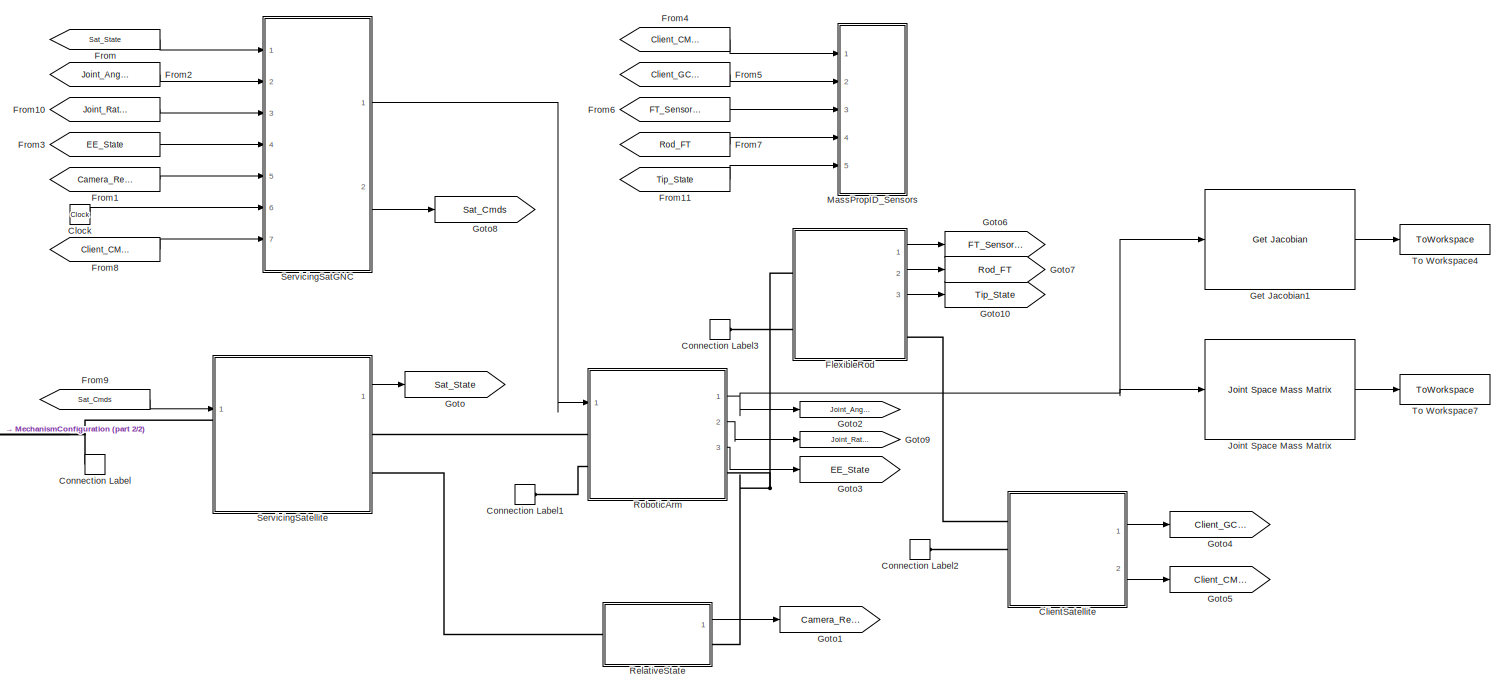
[diagram: root canvas - part 1/2, most of the canvas]
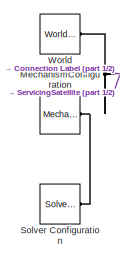
[diagram: root canvas - part 2/2, bottom left region]
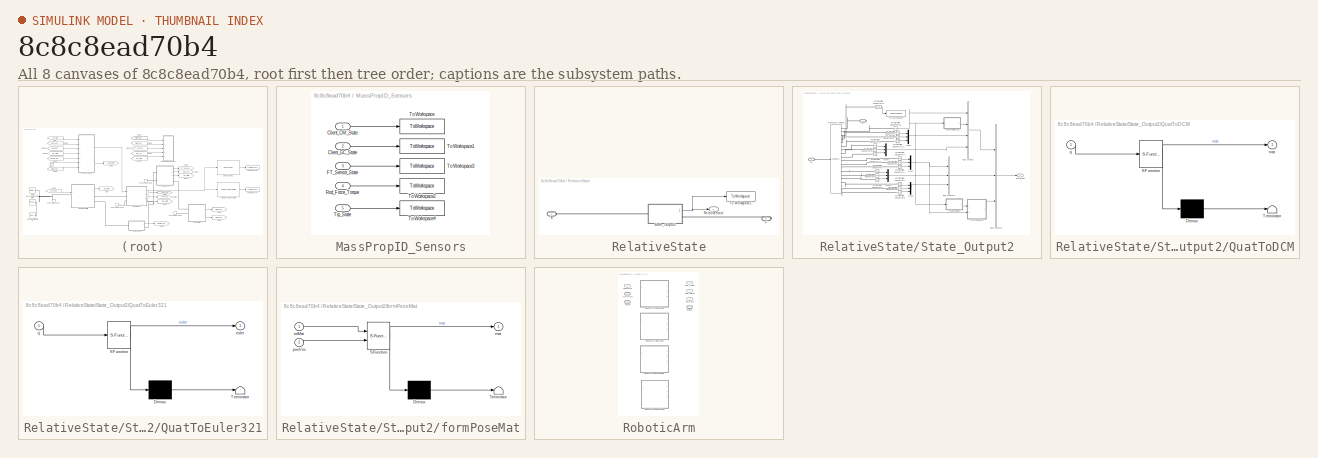
[diagram: thumbnail index - all 8 canvases of the model, root first then tree order]
MODEL slx_8c8c8ead70b4
KIND model
CONFIG AbsTol = auto
CONFIG EnableMultiTasking = off
CONFIG FixedStep = auto
CONFIG MaxStep = auto
CONFIG MinStep = auto
CONFIG RelTol = 1e-3
CONFIG SampleTimeConstraint = Unconstrained
CONFIG SolverName = ode15s
CONFIG StartTime = 0.0
CONFIG StopTime = endTime
BLOCK [SubSystem] ClientSatellite
  Commented = on
  Ports = [0, 2, 0, 0, 0, 3]
  ReferencedSubsystem = ClientSatellite
  RequestExecContextInheritance = off
BLOCK [Clock] Clock
BLOCK [ConnectionLabel] Connection Label
  Label = World
  Ports = [0, 0, 0, 0, 0, 1]
BLOCK [ConnectionLabel] Connection Label1
  Label = World
  Ports = [0, 0, 0, 0, 0, 1]
BLOCK [ConnectionLabel] Connection Label2
  Label = World
  Ports = [0, 0, 0, 0, 0, 1]
BLOCK [ConnectionLabel] Connection Label3
  Label = World
  Ports = [0, 0, 0, 0, 0, 1]
BLOCK [SubSystem] FlexibleRod
  Commented = on
  Ports = [0, 3, 0, 0, 0, 2, 2]
  ReferencedSubsystem = FlexibleRodModel
  RequestExecContextInheritance = off
BLOCK [From] From
  GotoTag = Sat_State
BLOCK [From] From1
  GotoTag = Camera_Rel_State
BLOCK [From] From10
  GotoTag = Joint_Rates
BLOCK [From] From11
  GotoTag = Tip_State
BLOCK [From] From2
  GotoTag = Joint_Angles
BLOCK [From] From3
  GotoTag = EE_State
BLOCK [From] From4
  GotoTag = Client_CM_State
BLOCK [From] From5
  GotoTag = Client_GC_State
BLOCK [From] From6
  GotoTag = FT_Sensor_State
BLOCK [From] From7
  GotoTag = Rod_FT
BLOCK [From] From8
  GotoTag = Client_CM_State
BLOCK [From] From9
  GotoTag = Sat_Cmds
BLOCK [Reference] Get Jacobian1  REF=robotmaniplib/Get Jacobian
  Ports = [1, 1]
  SourceBlock = robotmaniplib/Get Jacobian
  SourceProductBaseCode = RO
  SourceType = Get Jacobian
BLOCK [Goto] Goto
  GotoTag = Sat_State
BLOCK [Goto] Goto1
  GotoTag = Camera_Rel_State
BLOCK [Goto] Goto10
  GotoTag = Tip_State
BLOCK [Goto] Goto2
  GotoTag = Joint_Angles
BLOCK [Goto] Goto3
  GotoTag = EE_State
BLOCK [Goto] Goto4
  Commented = on
  GotoTag = Client_GC_State
BLOCK [Goto] Goto5
  Commented = on
  GotoTag = Client_CM_State
BLOCK [Goto] Goto6
  GotoTag = FT_Sensor_State
BLOCK [Goto] Goto7
  GotoTag = Rod_FT
BLOCK [Goto] Goto8
  GotoTag = Sat_Cmds
BLOCK [Goto] Goto9
  GotoTag = Joint_Rates
BLOCK [Reference] Joint Space Mass Matrix  REF=robotmaniplib/Joint Space Mass Matrix
  Ports = [1, 1]
  SourceBlock = robotmaniplib/Joint Space Mass Matrix
  SourceProductBaseCode = RO
  SourceType = Joint Space Mass Matrix
BLOCK [SubSystem] MassPropID_Sensors
  Ports = [5]
  RequestExecContextInheritance = off
BLOCK [Inport] MassPropID_Sensors/Client_CM_State
BLOCK [Inport] MassPropID_Sensors/Client_GC_State
  Port = 2
BLOCK [Inport] MassPropID_Sensors/FT_Sensor_State
  Port = 3
BLOCK [Inport] MassPropID_Sensors/Rod_Force_Torque
  Port = 4
BLOCK [Inport] MassPropID_Sensors/Tip_State
  Port = 5
BLOCK [ToWorkspace] MassPropID_Sensors/To Workspace
  FixptAsFi = on
  MaxDataPoints = inf
  Ports = [1]
  SampleTime = -1
  SaveFormat = Timeseries
  VariableName = client_cm_state
BLOCK [ToWorkspace] MassPropID_Sensors/To Workspace1
  FixptAsFi = on
  MaxDataPoints = inf
  Ports = [1]
  SampleTime = -1
  SaveFormat = Timeseries
  VariableName = client_gc_state
BLOCK [ToWorkspace] MassPropID_Sensors/To Workspace2
  FixptAsFi = on
  MaxDataPoints = inf
  Ports = [1]
  SampleTime = -1
  SaveFormat = Timeseries
  VariableName = rod_force_torque
BLOCK [ToWorkspace] MassPropID_Sensors/To Workspace3
  FixptAsFi = on
  MaxDataPoints = inf
  Ports = [1]
  SampleTime = -1
  SaveFormat = Timeseries
  VariableName = ft_sensor_state
BLOCK [ToWorkspace] MassPropID_Sensors/To Workspace4
  FixptAsFi = on
  MaxDataPoints = inf
  Ports = [1]
  SampleTime = -1
  SaveFormat = Timeseries
  VariableName = tip_states
BLOCK [Reference] MechanismConfiguration  REF=sm_lib/Utilities/Mechanism
Configuration
  Ports = [0, 0, 0, 0, 0, 0, 1]
  SourceBlock = sm_lib/Utilities/Mechanism\nConfiguration
  SourceProductBaseCode = MS
  SourceType = Mechanism\nConfiguration
BLOCK [SubSystem] RelativeState
  Ports = [0, 1, 0, 0, 0, 1, 1]
  RequestExecContextInheritance = off
BLOCK [PMIOPort] RelativeState/B
  Side = Left
BLOCK [PMIOPort] RelativeState/F
  Port = 2
  Side = Right
BLOCK [Outport] RelativeState/RelativeState
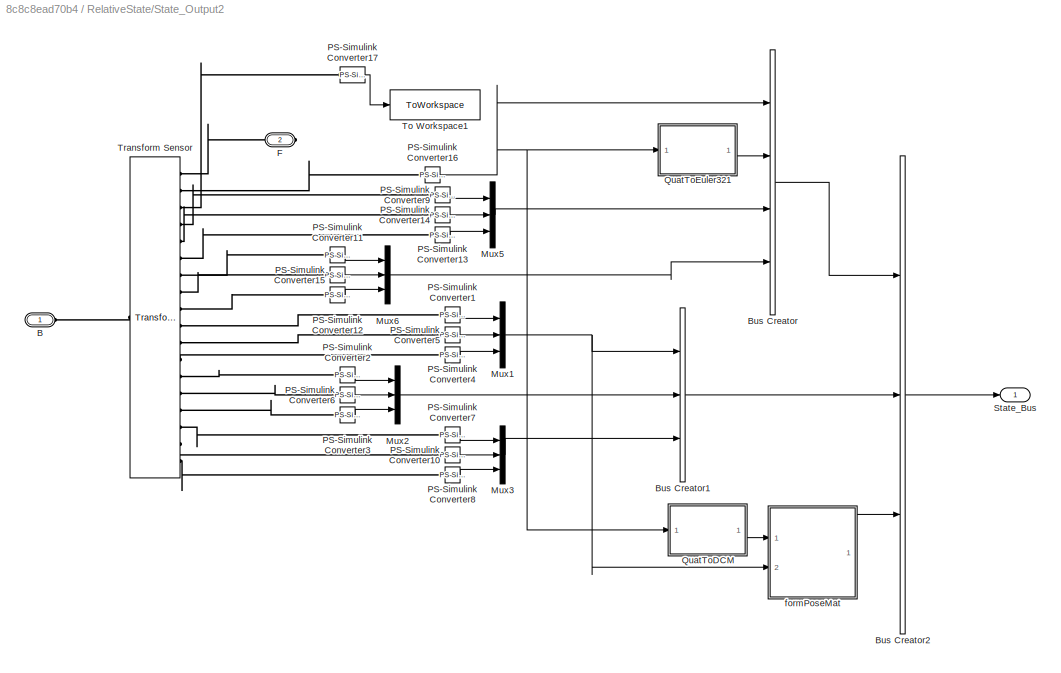
BLOCK [SubSystem] RelativeState/State_Output2
  Ports = [0, 1, 0, 0, 0, 1, 1]
  RequestExecContextInheritance = off
BLOCK [PMIOPort] RelativeState/State_Output2/B
  Side = Left
BLOCK [BusCreator] RelativeState/State_Output2/Bus Creator
  DisplayOption = bar
  InheritFromInputs = off
  Inputs = 4
  OutDataTypeStr = Bus: RotStateBus
  Ports = [4, 1]
BLOCK [BusCreator] RelativeState/State_Output2/Bus Creator1
  DisplayOption = bar
  InheritFromInputs = off
  Inputs = 3
  OutDataTypeStr = Bus: TransStateBus
  Ports = [3, 1]
BLOCK [BusCreator] RelativeState/State_Output2/Bus Creator2
  DisplayOption = bar
  InheritFromInputs = off
  Inputs = 3
  OutDataTypeStr = Bus: StateBus
  Ports = [3, 1]
BLOCK [PMIOPort] RelativeState/State_Output2/F
  Port = 2
  Side = Right
BLOCK [Mux] RelativeState/State_Output2/Mux1
  DisplayOption = bar
  Inputs = 3
  Ports = [3, 1]
BLOCK [Mux] RelativeState/State_Output2/Mux2
  DisplayOption = bar
  Inputs = 3
  Ports = [3, 1]
BLOCK [Mux] RelativeState/State_Output2/Mux3
  DisplayOption = bar
  Inputs = 3
  Ports = [3, 1]
BLOCK [Mux] RelativeState/State_Output2/Mux5
  DisplayOption = bar
  Inputs = 3
  Ports = [3, 1]
BLOCK [Mux] RelativeState/State_Output2/Mux6
  DisplayOption = bar
  Inputs = 3
  Ports = [3, 1]
BLOCK [Reference] RelativeState/State_Output2/PS-Simulink Converter1  REF=nesl_utility/PS-Simulink
Converter
  Ports = [0, 1, 0, 0, 0, 1]
  SourceBlock = nesl_utility/PS-Simulink\nConverter
  SourceProductBaseCode = SS,PW,VE
  SourceType = PS-Simulink\nConverter
BLOCK [Reference] RelativeState/State_Output2/PS-Simulink Converter10  REF=nesl_utility/PS-Simulink
Converter
  Ports = [0, 1, 0, 0, 0, 1]
  SourceBlock = nesl_utility/PS-Simulink\nConverter
  SourceProductBaseCode = SS,PW,VE
  SourceType = PS-Simulink\nConverter
BLOCK [Reference] RelativeState/State_Output2/PS-Simulink Converter11  REF=nesl_utility/PS-Simulink
Converter
  Ports = [0, 1, 0, 0, 0, 1]
  SourceBlock = nesl_utility/PS-Simulink\nConverter
  SourceProductBaseCode = SS,PW,VE
  SourceType = PS-Simulink\nConverter
BLOCK [Reference] RelativeState/State_Output2/PS-Simulink Converter12  REF=nesl_utility/PS-Simulink
Converter
  Ports = [0, 1, 0, 0, 0, 1]
  SourceBlock = nesl_utility/PS-Simulink\nConverter
  SourceProductBaseCode = SS,PW,VE
  SourceType = PS-Simulink\nConverter
BLOCK [Reference] RelativeState/State_Output2/PS-Simulink Converter13  REF=nesl_utility/PS-Simulink
Converter
  Ports = [0, 1, 0, 0, 0, 1]
  SourceBlock = nesl_utility/PS-Simulink\nConverter
  SourceProductBaseCode = SS,PW,VE
  SourceType = PS-Simulink\nConverter
BLOCK [Reference] RelativeState/State_Output2/PS-Simulink Converter14  REF=nesl_utility/PS-Simulink
Converter
  Ports = [0, 1, 0, 0, 0, 1]
  SourceBlock = nesl_utility/PS-Simulink\nConverter
  SourceProductBaseCode = SS,PW,VE
  SourceType = PS-Simulink\nConverter
BLOCK [Reference] RelativeState/State_Output2/PS-Simulink Converter15  REF=nesl_utility/PS-Simulink
Converter
  Ports = [0, 1, 0, 0, 0, 1]
  SourceBlock = nesl_utility/PS-Simulink\nConverter
  SourceProductBaseCode = SS,PW,VE
  SourceType = PS-Simulink\nConverter
BLOCK [Reference] RelativeState/State_Output2/PS-Simulink Converter16  REF=nesl_utility/PS-Simulink
Converter
  Ports = [0, 1, 0, 0, 0, 1]
  SourceBlock = nesl_utility/PS-Simulink\nConverter
  SourceProductBaseCode = SS,PW,VE
  SourceType = PS-Simulink\nConverter
BLOCK [Reference] RelativeState/State_Output2/PS-Simulink Converter17  REF=nesl_utility/PS-Simulink
Converter
  Ports = [0, 1, 0, 0, 0, 1]
  SourceBlock = nesl_utility/PS-Simulink\nConverter
  SourceProductBaseCode = SS,PW,VE
  SourceType = PS-Simulink\nConverter
BLOCK [Reference] RelativeState/State_Output2/PS-Simulink Converter2  REF=nesl_utility/PS-Simulink
Converter
  Ports = [0, 1, 0, 0, 0, 1]
  SourceBlock = nesl_utility/PS-Simulink\nConverter
  SourceProductBaseCode = SS,PW,VE
  SourceType = PS-Simulink\nConverter
BLOCK [Reference] RelativeState/State_Output2/PS-Simulink Converter3  REF=nesl_utility/PS-Simulink
Converter
  Ports = [0, 1, 0, 0, 0, 1]
  SourceBlock = nesl_utility/PS-Simulink\nConverter
  SourceProductBaseCode = SS,PW,VE
  SourceType = PS-Simulink\nConverter
BLOCK [Reference] RelativeState/State_Output2/PS-Simulink Converter4  REF=nesl_utility/PS-Simulink
Converter
  Ports = [0, 1, 0, 0, 0, 1]
  SourceBlock = nesl_utility/PS-Simulink\nConverter
  SourceProductBaseCode = SS,PW,VE
  SourceType = PS-Simulink\nConverter
BLOCK [Reference] RelativeState/State_Output2/PS-Simulink Converter5  REF=nesl_utility/PS-Simulink
Converter
  Ports = [0, 1, 0, 0, 0, 1]
  SourceBlock = nesl_utility/PS-Simulink\nConverter
  SourceProductBaseCode = SS,PW,VE
  SourceType = PS-Simulink\nConverter
BLOCK [Reference] RelativeState/State_Output2/PS-Simulink Converter6  REF=nesl_utility/PS-Simulink
Converter
  Ports = [0, 1, 0, 0, 0, 1]
  SourceBlock = nesl_utility/PS-Simulink\nConverter
  SourceProductBaseCode = SS,PW,VE
  SourceType = PS-Simulink\nConverter
BLOCK [Reference] RelativeState/State_Output2/PS-Simulink Converter7  REF=nesl_utility/PS-Simulink
Converter
  Ports = [0, 1, 0, 0, 0, 1]
  SourceBlock = nesl_utility/PS-Simulink\nConverter
  SourceProductBaseCode = SS,PW,VE
  SourceType = PS-Simulink\nConverter
BLOCK [Reference] RelativeState/State_Output2/PS-Simulink Converter8  REF=nesl_utility/PS-Simulink
Converter
  Ports = [0, 1, 0, 0, 0, 1]
  SourceBlock = nesl_utility/PS-Simulink\nConverter
  SourceProductBaseCode = SS,PW,VE
  SourceType = PS-Simulink\nConverter
BLOCK [Reference] RelativeState/State_Output2/PS-Simulink Converter9  REF=nesl_utility/PS-Simulink
Converter
  Ports = [0, 1, 0, 0, 0, 1]
  SourceBlock = nesl_utility/PS-Simulink\nConverter
  SourceProductBaseCode = SS,PW,VE
  SourceType = PS-Simulink\nConverter
BLOCK [SubSystem] RelativeState/State_Output2/QuatToDCM
  ErrorFcn = Stateflow.Translate.translate
  PermitHierarchicalResolution = ExplicitOnly
  Ports = [1, 1]
  RequestExecContextInheritance = off
  SFBlockType = MATLAB Function
  TreatAsAtomicUnit = on
BLOCK [Demux] RelativeState/State_Output2/QuatToDCM/ Demux 
  Outputs = 1
  Ports = [1, 1]
BLOCK [S-Function] RelativeState/State_Output2/QuatToDCM/ SFunction 
  EnableBusSupport = on
  FunctionName = sf_sfun
  PortCounts = [1 2]
  Ports = [1, 2]
  SFcnIsStateOwnerBlock = off
  SFunctionDeploymentMode = off
  Tag = Stateflow S-Function 24
BLOCK [Terminator] RelativeState/State_Output2/QuatToDCM/ Terminator 
BLOCK [Outport] RelativeState/State_Output2/QuatToDCM/mat
BLOCK [Inport] RelativeState/State_Output2/QuatToDCM/q
BLOCK [SubSystem] RelativeState/State_Output2/QuatToEuler321
  ErrorFcn = Stateflow.Translate.translate
  PermitHierarchicalResolution = ExplicitOnly
  Ports = [1, 1]
  RequestExecContextInheritance = off
  SFBlockType = MATLAB Function
  TreatAsAtomicUnit = on
BLOCK [Demux] RelativeState/State_Output2/QuatToEuler321/ Demux 
  Outputs = 1
  Ports = [1, 1]
BLOCK [S-Function] RelativeState/State_Output2/QuatToEuler321/ SFunction 
  EnableBusSupport = on
  FunctionName = sf_sfun
  PortCounts = [1 2]
  Ports = [1, 2]
  SFcnIsStateOwnerBlock = off
  SFunctionDeploymentMode = off
  Tag = Stateflow S-Function 25
BLOCK [Terminator] RelativeState/State_Output2/QuatToEuler321/ Terminator 
BLOCK [Outport] RelativeState/State_Output2/QuatToEuler321/euler
BLOCK [Inport] RelativeState/State_Output2/QuatToEuler321/q
BLOCK [Outport] RelativeState/State_Output2/State_Bus
BLOCK [ToWorkspace] RelativeState/State_Output2/To Workspace1
  FixptAsFi = on
  MaxDataPoints = inf
  Ports = [1]
  SampleTime = -1
  SaveFormat = Timeseries
  VariableName = rel_rot
BLOCK [Reference] RelativeState/State_Output2/Transform Sensor  REF=sm_lib/Frames and
Transforms/Transform
Sensor
  Ports = [0, 0, 0, 0, 0, 1, 18]
  SourceBlock = sm_lib/Frames and\nTransforms/Transform\nSensor
  SourceProductBaseCode = MS
  SourceType = Transform\nSensor
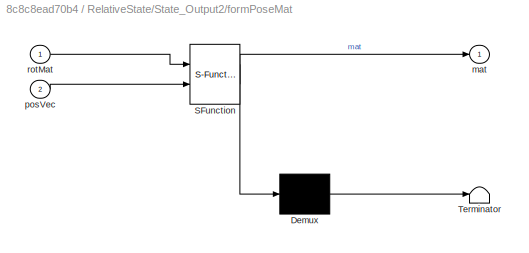
BLOCK [SubSystem] RelativeState/State_Output2/formPoseMat
  ErrorFcn = Stateflow.Translate.translate
  PermitHierarchicalResolution = ExplicitOnly
  Ports = [2, 1]
  RequestExecContextInheritance = off
  SFBlockType = MATLAB Function
  TreatAsAtomicUnit = on
BLOCK [Demux] RelativeState/State_Output2/formPoseMat/ Demux 
  Outputs = 1
  Ports = [1, 1]
BLOCK [S-Function] RelativeState/State_Output2/formPoseMat/ SFunction 
  EnableBusSupport = on
  FunctionName = sf_sfun
  PortCounts = [2 2]
  Ports = [2, 2]
  SFcnIsStateOwnerBlock = off
  SFunctionDeploymentMode = off
  Tag = Stateflow S-Function 26
BLOCK [Terminator] RelativeState/State_Output2/formPoseMat/ Terminator 
BLOCK [Outport] RelativeState/State_Output2/formPoseMat/mat
BLOCK [Inport] RelativeState/State_Output2/formPoseMat/posVec
  Port = 2
BLOCK [Inport] RelativeState/State_Output2/formPoseMat/rotMat
BLOCK [ToWorkspace] RelativeState/To Workspace1
  FixptAsFi = on
  MaxDataPoints = inf
  Ports = [1]
  SampleTime = -1
  SaveFormat = Timeseries
  VariableName = rel_state
BLOCK [SubSystem] RoboticArm
  Ports = [1, 3, 0, 0, 0, 2, 1]
  RequestExecContextInheritance = off
  Variant = on
  VariantControl = Choice
BLOCK [PMIOPort] RoboticArm/ArmAttach
  Port = 2
  Side = Left
BLOCK [PMIOPort] RoboticArm/Gripper
  Side = Right
BLOCK [Inport] RoboticArm/JointCmds
BLOCK [Outport] RoboticArm/Joint_Angles
BLOCK [Outport] RoboticArm/Joint_Rates
  Port = 2
BLOCK [SubSystem] RoboticArm/RoboticArmGeneral6DOF
  Ports = [1, 3, 0, 0, 0, 2, 1]
  ReferencedSubsystem = RoboticArmGeneral6DOF
  RequestExecContextInheritance = off
  VariantControl = VSS_RoboticArmGeneral6DOF
BLOCK [SubSystem] RoboticArm/RoboticArmGeneral7DOF
  Ports = [1, 3, 0, 0, 0, 2, 1]
  ReferencedSubsystem = RoboticArmGeneral7DOF
  RequestExecContextInheritance = off
  VariantControl = VSS_RoboticArmGeneral7DOF
BLOCK [SubSystem] RoboticArm/RoboticArmPlanar3Link
  Ports = [1, 3, 0, 0, 0, 2, 1]
  ReferencedSubsystem = RoboticArmPlanar3Link
  RequestExecContextInheritance = off
  VariantControl = VSS_RoboticArmPlanar3Link
BLOCK [SubSystem] RoboticArm/RoboticArmViperX300
  Ports = [1, 3, 0, 0, 0, 2, 1]
  ReferencedSubsystem = RoboticArmViperX300
  RequestExecContextInheritance = off
  VariantControl = VSS_RoboticArmViperX300
BLOCK [PMIOPort] RoboticArm/World
  Port = 3
  Side = Left
BLOCK [Outport] RoboticArm/ee_state
  Port = 3
BLOCK [SubSystem] ServicingSatGNC
  MinAlgLoopOccurrences = on
  Ports = [7, 2]
  ReferencedSubsystem = ServicingSatGNC
  RequestExecContextInheritance = off
  SystemSampleTime = 0.001
BLOCK [SubSystem] ServicingSatellite
  Ports = [1, 1, 0, 0, 0, 1, 2]
  ReferencedSubsystem = ServicingSatellite
  RequestExecContextInheritance = off
BLOCK [Reference] Solver Configuration  REF=nesl_utility/Solver
Configuration
  Ports = [0, 0, 0, 0, 0, 0, 1]
  SourceBlock = nesl_utility/Solver\nConfiguration
  SourceProductBaseCode = SS,PW,VE
  SourceType = Solver\nConfiguration
BLOCK [ToWorkspace] To Workspace4
  FixptAsFi = on
  MaxDataPoints = inf
  Ports = [1]
  SampleTime = -1
  SaveFormat = Timeseries
  VariableName = jacobian
BLOCK [ToWorkspace] To Workspace7
  FixptAsFi = on
  MaxDataPoints = inf
  Ports = [1]
  SampleTime = -1
  SaveFormat = Timeseries
  VariableName = MassMatrix
BLOCK [Reference] World  REF=sm_lib/Frames and
Transforms/World Frame
  Ports = [0, 0, 0, 0, 0, 0, 1]
  SourceBlock = sm_lib/Frames and\nTransforms/World Frame
  SourceProductBaseCode = MS
  SourceType = World Frame
LINE ClientSatellite:1 -> Goto4:1
LINE ClientSatellite:2 -> Goto5:1
LINE Clock:1 -> ServicingSatGNC:6
LINE FlexibleRod:1 -> Goto6:1
LINE FlexibleRod:2 -> Goto7:1
LINE FlexibleRod:3 -> Goto10:1
LINE From10:1 -> ServicingSatGNC:3
LINE From11:1 -> MassPropID_Sensors:5
LINE From1:1 -> ServicingSatGNC:5
LINE From2:1 -> ServicingSatGNC:2
LINE From3:1 -> ServicingSatGNC:4
LINE From4:1 -> MassPropID_Sensors:1
LINE From5:1 -> MassPropID_Sensors:2
LINE From6:1 -> MassPropID_Sensors:3
LINE From7:1 -> MassPropID_Sensors:4
LINE From8:1 -> ServicingSatGNC:7
LINE From9:1 -> ServicingSatellite:1
LINE From:1 -> ServicingSatGNC:1
LINE Get Jacobian1:1 -> To Workspace4:1
LINE Joint Space Mass Matrix:1 -> To Workspace7:1
LINE MassPropID_Sensors/Client_CM_State:1 -> MassPropID_Sensors/To Workspace:1
LINE MassPropID_Sensors/Client_GC_State:1 -> MassPropID_Sensors/To Workspace1:1
LINE MassPropID_Sensors/FT_Sensor_State:1 -> MassPropID_Sensors/To Workspace3:1
LINE MassPropID_Sensors/Rod_Force_Torque:1 -> MassPropID_Sensors/To Workspace2:1
LINE MassPropID_Sensors/Tip_State:1 -> MassPropID_Sensors/To Workspace4:1
LINE RelativeState/State_Output2/Bus Creator1:1 -> RelativeState/State_Output2/Bus Creator2:2
LINE RelativeState/State_Output2/Bus Creator2:1 -> RelativeState/State_Output2/State_Bus:1
LINE RelativeState/State_Output2/Bus Creator:1 -> RelativeState/State_Output2/Bus Creator2:1
NET RelativeState/State_Output2/Mux1:1 -> RelativeState/State_Output2/Bus Creator1:1, RelativeState/State_Output2/formPoseMat:2
LINE RelativeState/State_Output2/Mux2:1 -> RelativeState/State_Output2/Bus Creator1:2
LINE RelativeState/State_Output2/Mux3:1 -> RelativeState/State_Output2/Bus Creator1:3
LINE RelativeState/State_Output2/Mux5:1 -> RelativeState/State_Output2/Bus Creator:3
LINE RelativeState/State_Output2/Mux6:1 -> RelativeState/State_Output2/Bus Creator:4
LINE RelativeState/State_Output2/PS-Simulink Converter10:1 -> RelativeState/State_Output2/Mux3:2
LINE RelativeState/State_Output2/PS-Simulink Converter11:1 -> RelativeState/State_Output2/Mux6:1
LINE RelativeState/State_Output2/PS-Simulink Converter12:1 -> RelativeState/State_Output2/Mux6:3
LINE RelativeState/State_Output2/PS-Simulink Converter13:1 -> RelativeState/State_Output2/Mux5:3
LINE RelativeState/State_Output2/PS-Simulink Converter14:1 -> RelativeState/State_Output2/Mux5:2
LINE RelativeState/State_Output2/PS-Simulink Converter15:1 -> RelativeState/State_Output2/Mux6:2
NET RelativeState/State_Output2/PS-Simulink Converter16:1 -> RelativeState/State_Output2/Bus Creator:1, RelativeState/State_Output2/QuatToDCM:1, RelativeState/State_Output2/QuatToEuler321:1
LINE RelativeState/State_Output2/PS-Simulink Converter17:1 -> RelativeState/State_Output2/To Workspace1:1
LINE RelativeState/State_Output2/PS-Simulink Converter1:1 -> RelativeState/State_Output2/Mux1:1
LINE RelativeState/State_Output2/PS-Simulink Converter2:1 -> RelativeState/State_Output2/Mux2:1
LINE RelativeState/State_Output2/PS-Simulink Converter3:1 -> RelativeState/State_Output2/Mux2:3
LINE RelativeState/State_Output2/PS-Simulink Converter4:1 -> RelativeState/State_Output2/Mux1:3
LINE RelativeState/State_Output2/PS-Simulink Converter5:1 -> RelativeState/State_Output2/Mux1:2
LINE RelativeState/State_Output2/PS-Simulink Converter6:1 -> RelativeState/State_Output2/Mux2:2
LINE RelativeState/State_Output2/PS-Simulink Converter7:1 -> RelativeState/State_Output2/Mux3:1
LINE RelativeState/State_Output2/PS-Simulink Converter8:1 -> RelativeState/State_Output2/Mux3:3
LINE RelativeState/State_Output2/PS-Simulink Converter9:1 -> RelativeState/State_Output2/Mux5:1
LINE RelativeState/State_Output2/QuatToDCM:1 -> RelativeState/State_Output2/formPoseMat:1
LINE RelativeState/State_Output2/QuatToEuler321:1 -> RelativeState/State_Output2/Bus Creator:2
LINE RelativeState/State_Output2/formPoseMat:1 -> RelativeState/State_Output2/Bus Creator2:3
NET RelativeState/State_Output2:1 -> RelativeState/RelativeState:1, RelativeState/To Workspace1:1
LINE RelativeState:1 -> Goto1:1
NET RoboticArm:1 -> Get Jacobian1:1, Goto2:1, Joint Space Mass Matrix:1
LINE RoboticArm:2 -> Goto9:1
LINE RoboticArm:3 -> Goto3:1
LINE ServicingSatGNC:1 -> RoboticArm:1
LINE ServicingSatGNC:2 -> Goto8:1
LINE ServicingSatellite:1 -> Goto:1
PLINE ClientSatellite:LConn1 -- FlexibleRod:RConn2
PLINE ClientSatellite:LConn2 -- Connection Label2:LConn1
PLINE Connection Label1:LConn1 -- RoboticArm:LConn2
PLINE Connection Label3:LConn1 -- FlexibleRod:LConn2
PNET net1: Connection Label:LConn1 -- MechanismConfiguration:RConn1 -- ServicingSatellite:LConn1 -- Solver Configuration:RConn1 -- World:RConn1
PNET net2: FlexibleRod:LConn1 -- RelativeState:RConn1 -- RoboticArm:RConn1
PLINE RelativeState/B:RConn1 -- RelativeState/State_Output2:LConn1
PLINE RelativeState/F:RConn1 -- RelativeState/State_Output2:RConn1
PLINE RelativeState/State_Output2/B:RConn1 -- RelativeState/State_Output2/Transform Sensor:LConn1
PLINE RelativeState/State_Output2/F:RConn1 -- RelativeState/State_Output2/Transform Sensor:RConn1
PLINE RelativeState/State_Output2/PS-Simulink Converter10:LConn1 -- RelativeState/State_Output2/Transform Sensor:RConn17
PLINE RelativeState/State_Output2/PS-Simulink Converter11:LConn1 -- RelativeState/State_Output2/Transform Sensor:RConn7
PLINE RelativeState/State_Output2/PS-Simulink Converter12:LConn1 -- RelativeState/State_Output2/Transform Sensor:RConn9
PLINE RelativeState/State_Output2/PS-Simulink Converter13:LConn1 -- RelativeState/State_Output2/Transform Sensor:RConn6
PLINE RelativeState/State_Output2/PS-Simulink Converter14:LConn1 -- RelativeState/State_Output2/Transform Sensor:RConn5
PLINE RelativeState/State_Output2/PS-Simulink Converter15:LConn1 -- RelativeState/State_Output2/Transform Sensor:RConn8
PLINE RelativeState/State_Output2/PS-Simulink Converter16:LConn1 -- RelativeState/State_Output2/Transform Sensor:RConn2
PLINE RelativeState/State_Output2/PS-Simulink Converter17:LConn1 -- RelativeState/State_Output2/Transform Sensor:RConn3
PLINE RelativeState/State_Output2/PS-Simulink Converter1:LConn1 -- RelativeState/State_Output2/Transform Sensor:RConn10
PLINE RelativeState/State_Output2/PS-Simulink Converter2:LConn1 -- RelativeState/State_Output2/Transform Sensor:RConn13
PLINE RelativeState/State_Output2/PS-Simulink Converter3:LConn1 -- RelativeState/State_Output2/Transform Sensor:RConn15
PLINE RelativeState/State_Output2/PS-Simulink Converter4:LConn1 -- RelativeState/State_Output2/Transform Sensor:RConn12
PLINE RelativeState/State_Output2/PS-Simulink Converter5:LConn1 -- RelativeState/State_Output2/Transform Sensor:RConn11
PLINE RelativeState/State_Output2/PS-Simulink Converter6:LConn1 -- RelativeState/State_Output2/Transform Sensor:RConn14
PLINE RelativeState/State_Output2/PS-Simulink Converter7:LConn1 -- RelativeState/State_Output2/Transform Sensor:RConn16
PLINE RelativeState/State_Output2/PS-Simulink Converter8:LConn1 -- RelativeState/State_Output2/Transform Sensor:RConn18
PLINE RelativeState/State_Output2/PS-Simulink Converter9:LConn1 -- RelativeState/State_Output2/Transform Sensor:RConn4
PLINE RelativeState:LConn1 -- ServicingSatellite:RConn2
PLINE RoboticArm:LConn1 -- ServicingSatellite:RConn1
note: NET lines group one-source signal fan-out (src -> all destinations, sorted); 1:1 wires keep LINE; PNET lines group multi-terminal physical nets as a canonical sorted terminal list (undirected conserving connections); 2-terminal nets keep the pairwise PLINE form
CHART RelativeState/State_Output2/QuatToDCM states=1 transitions=1
  STATE_LABEL 'eML_blk_kernel()'
  STATE_LABEL 'SCRIPT:\nfunction mat  = callQuatToDCM(q)\n\n[mat] = simscapeQuatToDCM(q);\n\n\n\n'
CHART RelativeState/State_Output2/QuatToEuler321 states=1 transitions=1
  STATE_LABEL 'eML_blk_kernel()'
  STATE_LABEL 'SCRIPT:\nfunction euler  = callQuatToEuler321(q)\n\n\n[euler] = quatToEuler_321(q);\n\n\n'
CHART RelativeState/State_Output2/formPoseMat states=1 transitions=1
  STATE_LABEL 'eML_blk_kernel()'
  STATE_LABEL 'SCRIPT:\nfunction mat  = callFormPoseMat(rotMat,posVec)\n\n\n[mat] = formPoseMat(rotMat,posVec);\n\n\n\n\n\n'
CHART  states=0 transitions=0
CHART  states=0 transitions=0
CHART  states=0 transitions=0
